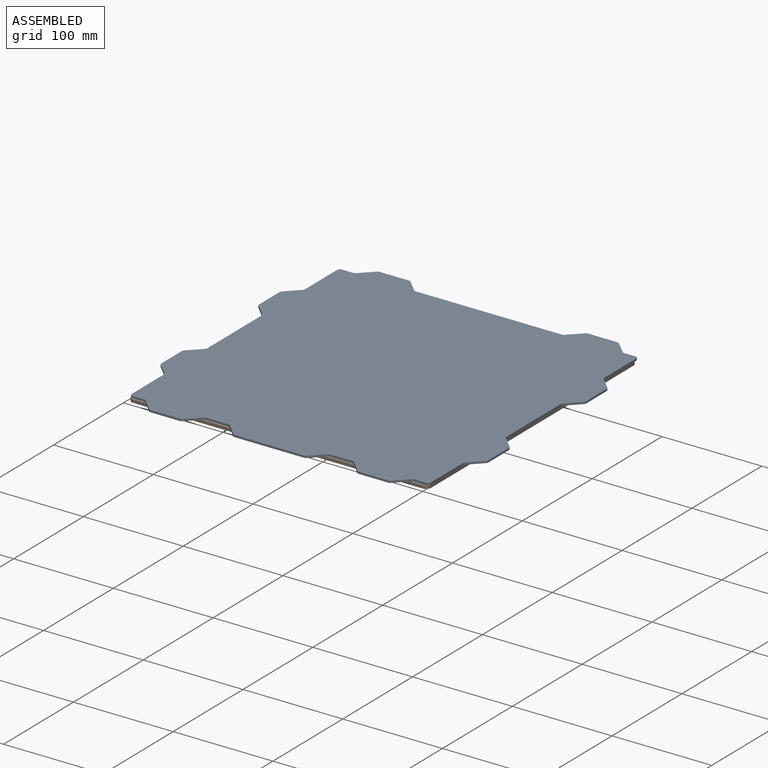
[diagram: assembled view]
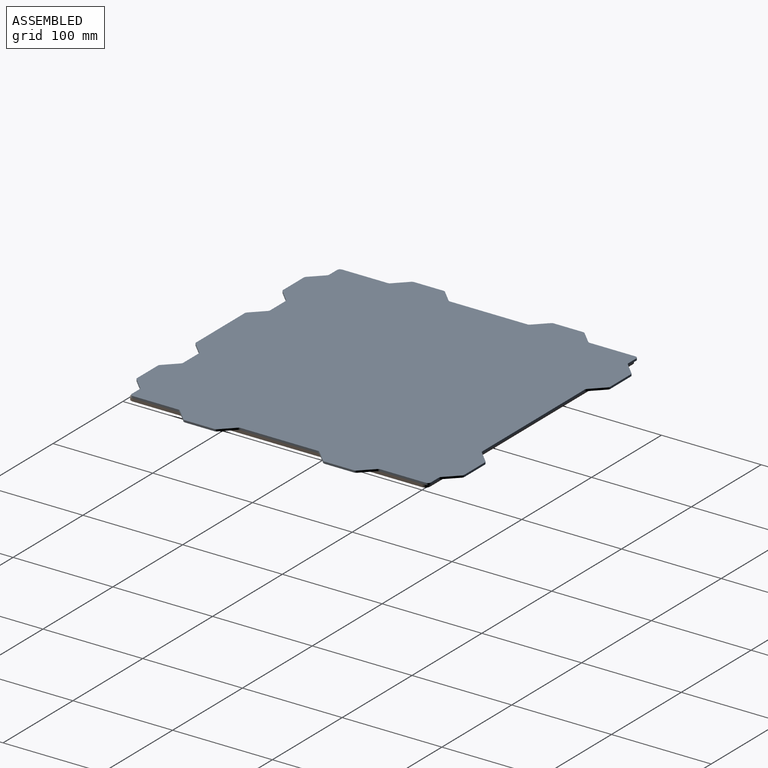
[diagram: assembled view, second angle]
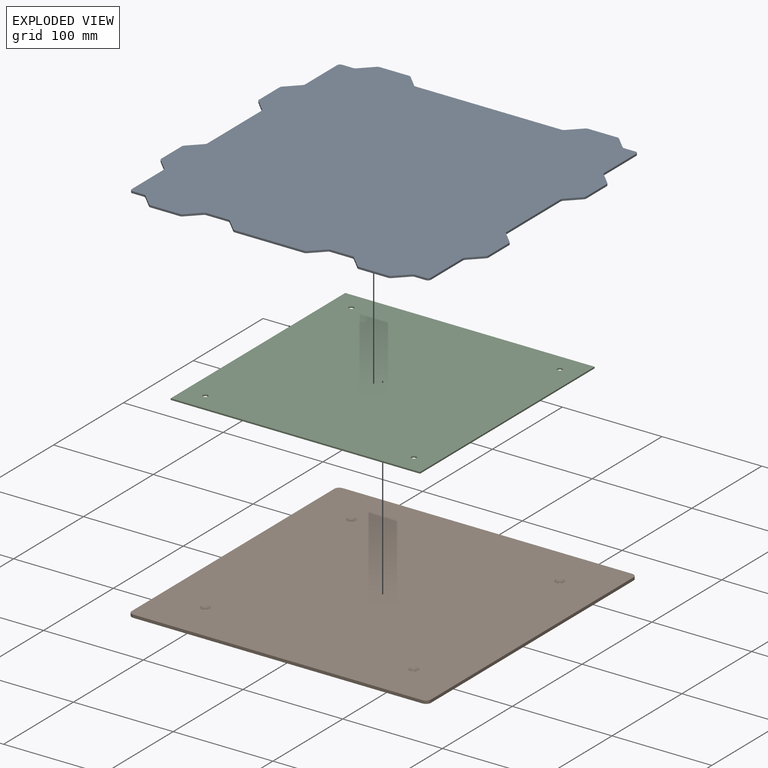
[diagram: exploded view]
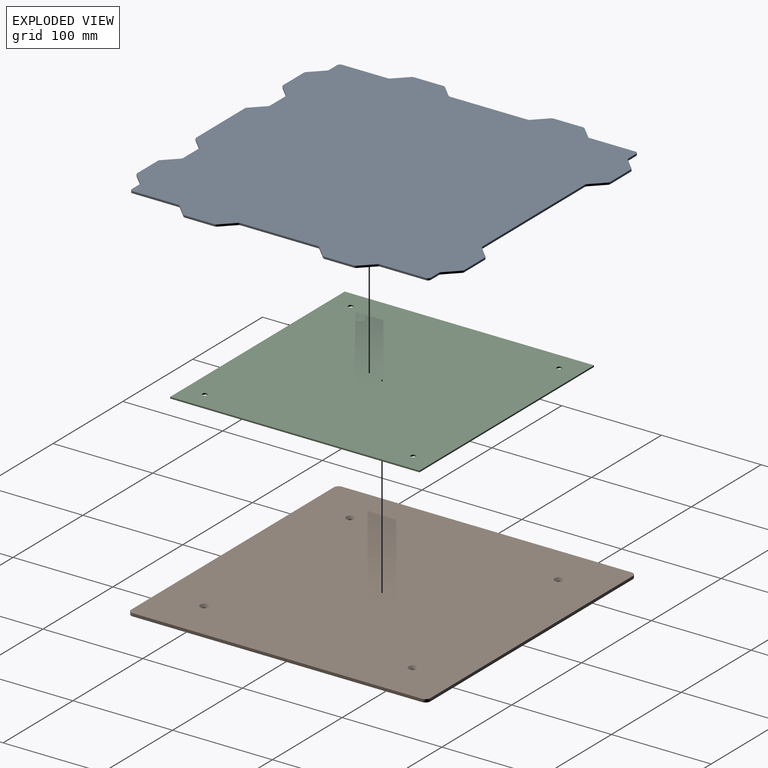
[diagram: exploded view, second angle]
ASSEMBLY  parts=3 mates=2
PART A: 82 faces, bbox 328x328x2 mm
  f0: plane 22.01x2mm, normal (0,-1,0), area 44mm2, adj f11,f12,f30,f41
  f1: plane 12.24x12.24mm, normal (-0.71,0.71,0), area 34.6mm2, adj f11,f12,f13,f16
  f2: plane 146.51x2mm, normal (0,1,0), area 293mm2, adj f11,f12,f13,f53
  f3: plane 77.51x2mm, normal (1,0,0), area 155mm2, adj f11,f12,f17,f34
  f4: plane 12.24x12.24mm, normal (0.71,-0.71,0), area 34.6mm2, adj f11,f12,f17,f18
  f5: plane 29.51x2mm, normal (1,0,0), area 59mm2, adj f11,f12,f18,f19
  f6: plane 12.24x12.24mm, normal (0.71,0.71,0), area 34.6mm2, adj f11,f12,f19,f20
  f7: plane 45.76x2mm, normal (1,0,0), area 91.5mm2, adj f11,f12,f20,f21
  f8: plane 11.26x2mm, normal (0,1,0), area 22.5mm2, adj f11,f12,f14,f21
  f9: plane 12.24x12.24mm, normal (0.71,0.71,0), area 34.6mm2, adj f11,f12,f14,f15
  f10: plane 29.51x2mm, normal (0,1,0), area 59mm2, adj f11,f12,f15,f16
  f11: plane 328x328mm, normal (0,0,1), area 96348.3mm2, adj f0,f1,f2,f3,f4,f5,f6,f7
  f12: plane 328x328mm, normal (0,0,-1), area 96348.3mm2, adj f0,f1,f2,f3,f4,f5,f6,f7
  f13: cylinder r=3mm len=2.12mm, axis (0,0,1), area 4.7mm2, adj f1,f2,f11,f12
  f14: cylinder r=3mm len=2.12mm, axis (0,0,1), area 4.7mm2, adj f8,f9,f11,f12
  f15: cylinder r=3mm len=2.12mm, axis (0,0,-1), area 4.7mm2, adj f9,f10,f11,f12
  f16: cylinder r=3mm len=2.12mm, axis (0,0,-1), area 4.7mm2, adj f1,f10,f11,f12
  f17: cylinder r=3mm len=2.12mm, axis (0,0,-1), area 4.7mm2, adj f3,f4,f11,f12
  f18: cylinder r=3mm len=2.12mm, axis (0,0,-1), area 4.7mm2, adj f4,f5,f11,f12
  f19: cylinder r=3mm len=2.12mm, axis (0,0,-1), area 4.7mm2, adj f5,f6,f11,f12
  f20: cylinder r=3mm len=2.12mm, axis (0,0,-1), area 4.7mm2, adj f6,f7,f11,f12
  f21: cylinder r=3mm len=3mm, axis (0,0,1), area 9.4mm2, adj f7,f8,f11,f12
  f22: plane 12.24x12.24mm, normal (-0.71,-0.71,0), area 34.6mm2, adj f11,f12,f30,f33
  f23: plane 12.24x12.24mm, normal (0.71,0.71,0), area 34.6mm2, adj f11,f12,f34,f35
  f24: plane 29.51x2mm, normal (1,0,0), area 59mm2, adj f11,f12,f35,f36
  f25: plane 12.24x12.24mm, normal (0.71,-0.71,0), area 34.6mm2, adj f11,f12,f36,f37
  f26: plane 45.76x2mm, normal (1,0,0), area 91.5mm2, adj f11,f12,f37,f38
  f27: plane 11.26x2mm, normal (0,-1,0), area 22.5mm2, adj f11,f12,f31,f38
  f28: plane 12.24x12.24mm, normal (0.71,-0.71,0), area 34.6mm2, adj f11,f12,f31,f32
  f29: plane 29.51x2mm, normal (0,-1,0), area 59mm2, adj f11,f12,f32,f33
  f30: cylinder r=3mm len=2.12mm, axis (0,0,1), area 4.7mm2, adj f0,f11,f12,f22
  f31: cylinder r=3mm len=2.12mm, axis (0,0,1), area 4.7mm2, adj f11,f12,f27,f28
  f32: cylinder r=3mm len=2.12mm, axis (0,0,-1), area 4.7mm2, adj f11,f12,f28,f29
  f33: cylinder r=3mm len=2.12mm, axis (0,0,-1), area 4.7mm2, adj f11,f12,f22,f29
  f34: cylinder r=3mm len=2.12mm, axis (0,0,-1), area 4.7mm2, adj f3,f11,f12,f23
  f35: cylinder r=3mm len=2.12mm, axis (0,0,-1), area 4.7mm2, adj f11,f12,f23,f24
  f36: cylinder r=3mm len=2.12mm, axis (0,0,-1), area 4.7mm2, adj f11,f12,f24,f25
  f37: cylinder r=3mm len=2.12mm, axis (0,0,-1), area 4.7mm2, adj f11,f12,f25,f26
  f38: cylinder r=3mm len=3mm, axis (0,0,1), area 9.4mm2, adj f11,f12,f26,f27
  f39: plane 12.24x12.24mm, normal (0.71,-0.71,0), area 34.6mm2, adj f11,f12,f41,f42
  f40: plane 69.51x2mm, normal (0,-1,0), area 139mm2, adj f11,f12,f42,f81
  f41: cylinder r=3mm len=2.12mm, axis (0,0,1), area 4.7mm2, adj f0,f11,f12,f39
  f42: cylinder r=3mm len=2.12mm, axis (0,0,-1), area 4.7mm2, adj f11,f12,f39,f40
  f43: plane 22.01x2mm, normal (0,-1,0), area 44mm2, adj f11,f12,f70,f80
  f44: plane 12.24x12.24mm, normal (0.71,0.71,0), area 34.6mm2, adj f11,f12,f53,f56
  f45: plane 77.51x2mm, normal (-1,0,0), area 155mm2, adj f11,f12,f57,f74
  f46: plane 12.24x12.24mm, normal (-0.71,-0.71,0), area 34.6mm2, adj f11,f12,f57,f58
  f47: plane 29.51x2mm, normal (-1,0,0), area 59mm2, adj f11,f12,f58,f59
  f48: plane 12.24x12.24mm, normal (-0.71,0.71,0), area 34.6mm2, adj f11,f12,f59,f60
  f49: plane 45.76x2mm, normal (-1,0,0), area 91.5mm2, adj f11,f12,f60,f61
  f50: plane 11.26x2mm, normal (0,1,0), area 22.5mm2, adj f11,f12,f54,f61
  f51: plane 12.24x12.24mm, normal (-0.71,0.71,0), area 34.6mm2, adj f11,f12,f54,f55
  f52: plane 29.51x2mm, normal (0,1,0), area 59mm2, adj f11,f12,f55,f56
  f53: cylinder r=3mm len=2.12mm, axis (0,0,1), area 4.7mm2, adj f2,f11,f12,f44
  f54: cylinder r=3mm len=2.12mm, axis (0,0,1), area 4.7mm2, adj f11,f12,f50,f51
  f55: cylinder r=3mm len=2.12mm, axis (0,0,-1), area 4.7mm2, adj f11,f12,f51,f52
  f56: cylinder r=3mm len=2.12mm, axis (0,0,-1), area 4.7mm2, adj f11,f12,f44,f52
  f57: cylinder r=3mm len=2.12mm, axis (0,0,-1), area 4.7mm2, adj f11,f12,f45,f46
  f58: cylinder r=3mm len=2.12mm, axis (0,0,-1), area 4.7mm2, adj f11,f12,f46,f47
  f59: cylinder r=3mm len=2.12mm, axis (0,0,-1), area 4.7mm2, adj f11,f12,f47,f48
  f60: cylinder r=3mm len=2.12mm, axis (0,0,-1), area 4.7mm2, adj f11,f12,f48,f49
  f61: cylinder r=3mm len=3mm, axis (0,0,1), area 9.4mm2, adj f11,f12,f49,f50
  f62: plane 12.24x12.24mm, normal (0.71,-0.71,0), area 34.6mm2, adj f11,f12,f70,f73
  f63: plane 12.24x12.24mm, normal (-0.71,0.71,0), area 34.6mm2, adj f11,f12,f74,f75
  f64: plane 29.51x2mm, normal (-1,0,0), area 59mm2, adj f11,f12,f75,f76
  f65: plane 12.24x12.24mm, normal (-0.71,-0.71,0), area 34.6mm2, adj f11,f12,f76,f77
  f66: plane 45.76x2mm, normal (-1,0,0), area 91.5mm2, adj f11,f12,f77,f78
  f67: plane 11.26x2mm, normal (0,-1,0), area 22.5mm2, adj f11,f12,f71,f78
  f68: plane 12.24x12.24mm, normal (-0.71,-0.71,0), area 34.6mm2, adj f11,f12,f71,f72
  f69: plane 29.51x2mm, normal (0,-1,0), area 59mm2, adj f11,f12,f72,f73
  f70: cylinder r=3mm len=2.12mm, axis (0,0,1), area 4.7mm2, adj f11,f12,f43,f62
  f71: cylinder r=3mm len=2.12mm, axis (0,0,1), area 4.7mm2, adj f11,f12,f67,f68
  f72: cylinder r=3mm len=2.12mm, axis (0,0,-1), area 4.7mm2, adj f11,f12,f68,f69
  f73: cylinder r=3mm len=2.12mm, axis (0,0,-1), area 4.7mm2, adj f11,f12,f62,f69
  f74: cylinder r=3mm len=2.12mm, axis (0,0,-1), area 4.7mm2, adj f11,f12,f45,f63
  f75: cylinder r=3mm len=2.12mm, axis (0,0,-1), area 4.7mm2, adj f11,f12,f63,f64
  f76: cylinder r=3mm len=2.12mm, axis (0,0,-1), area 4.7mm2, adj f11,f12,f64,f65
  f77: cylinder r=3mm len=2.12mm, axis (0,0,-1), area 4.7mm2, adj f11,f12,f65,f66
  f78: cylinder r=3mm len=3mm, axis (0,0,1), area 9.4mm2, adj f11,f12,f66,f67
  f79: plane 12.24x12.24mm, normal (-0.71,-0.71,0), area 34.6mm2, adj f11,f12,f80,f81
  f80: cylinder r=3mm len=2.12mm, axis (0,0,1), area 4.7mm2, adj f11,f12,f43,f79
  f81: cylinder r=3mm len=2.12mm, axis (0,0,-1), area 4.7mm2, adj f11,f12,f40,f79
PART B: 18 faces, bbox 300x300x3 mm
  f0: plane 290x3mm, normal (1,0,0), area 870mm2, adj f3,f4,f5,f11
  f1: plane 290x3mm, normal (0,1,0), area 870mm2, adj f3,f4,f5,f8
  f2: cylinder r=2.15mm len=4.3mm, axis (0,0,-1), area 6.8mm2, adj f3,f17
  f3: plane 300x300mm, normal (0,0,1), area 89920.5mm2, adj f0,f1,f2,f5,f6,f7,f8,f9
  f4: plane 300x300mm, normal (0,0,-1), area 89706.8mm2, adj f0,f1,f5,f6,f8,f9,f11,f13
  f5: cylinder r=5mm len=5mm, axis (0,0,1), area 23.6mm2, adj f0,f1,f3,f4
  f6: plane 290x3mm, normal (-1,0,0), area 870mm2, adj f3,f4,f8,f13
  f7: cylinder r=2.15mm len=4.3mm, axis (0,0,-1), area 6.8mm2, adj f3,f16
  f8: cylinder r=5mm len=5mm, axis (0,0,1), area 23.6mm2, adj f1,f3,f4,f6
  f9: plane 290x3mm, normal (0,-1,0), area 870mm2, adj f3,f4,f11,f13
  f10: cylinder r=2.15mm len=4.3mm, axis (0,0,-1), area 6.8mm2, adj f3,f15
  f11: cylinder r=5mm len=5mm, axis (0,0,1), area 23.6mm2, adj f0,f3,f4,f9
  f12: cylinder r=2.15mm len=4.3mm, axis (0,0,-1), area 6.8mm2, adj f3,f14
  f13: cylinder r=5mm len=5mm, axis (0,0,1), area 23.6mm2, adj f3,f4,f6,f9
  f14: cone r=4.65mm half-angle=45deg, axis (0,0,-1), area 75.5mm2, adj f4,f12
  f15: cone r=2.15mm half-angle=45deg, axis (0,0,-1), area 75.5mm2, adj f4,f10
  f16: cone r=2.15mm half-angle=45deg, axis (0,0,-1), area 75.5mm2, adj f4,f7
  f17: cone r=4.65mm half-angle=45deg, axis (0,0,-1), area 75.5mm2, adj f2,f4
PART C: 10 faces, bbox 250x250x1.5 mm
  f0: plane 250x1.5mm, normal (0,-1,0), area 375mm2, adj f1,f7,f8,f9
  f1: plane 250x1.5mm, normal (1,0,0), area 375mm2, adj f0,f2,f8,f9
  f2: plane 250x1.5mm, normal (0,1,0), area 375mm2, adj f1,f7,f8,f9
  f3: cylinder r=2.5mm len=5mm, axis (0,0,-1), area 23.6mm2, adj f8,f9
  f4: cylinder r=2.5mm len=5mm, axis (0,0,-1), area 23.6mm2, adj f8,f9
  f5: cylinder r=2.5mm len=5mm, axis (0,0,-1), area 23.6mm2, adj f8,f9
  f6: cylinder r=2.5mm len=5mm, axis (0,0,-1), area 23.6mm2, adj f8,f9
  f7: plane 250x1.5mm, normal (-1,0,0), area 375mm2, adj f0,f2,f8,f9
  f8: plane 250x250mm, normal (0,0,1), area 62421.5mm2, adj f0,f1,f2,f3,f4,f5,f6,f7
  f9: plane 250x250mm, normal (0,0,-1), area 62421.5mm2, adj f0,f1,f2,f3,f4,f5,f6,f7
PLACE A t=(0,1.96,0)mm
PLACE B rot(axis=(1,0,0),180deg) t=(0,0,0)mm
PLACE C rot(axis=(1,0,0),180deg) t=(0,0,-3)mm
MATE fastened C.f3 <-> B.f7  axis (0,0,1) through (-104.5,-104.5,-3)mm
MATE fastened A.f12 <-> B.f4  axis (0,0,-1) through (0,0,0)mm
